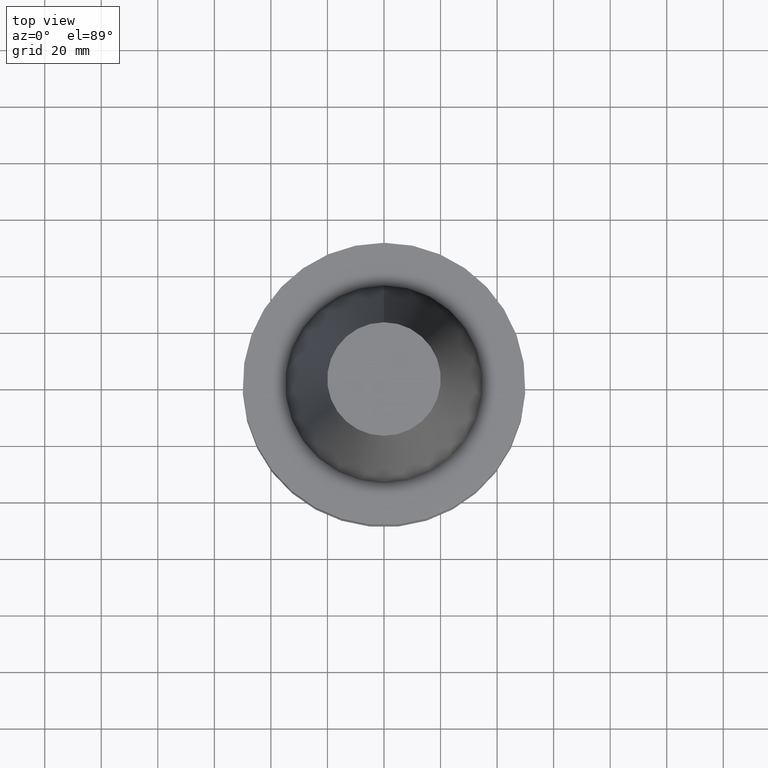
[diagram: clean part render]
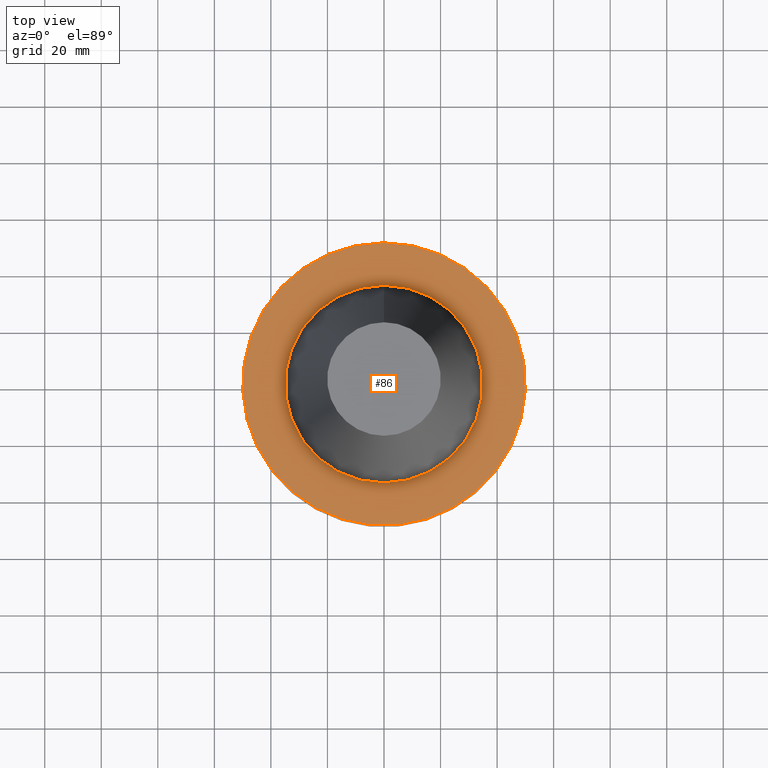
[diagram: same view with one face highlighted and labeled with its STEP entity id]
A machine part, top view. The second image highlights one B-rep face of the part: STEP entity #86.
In plain terms, the highlighted planar face has unit normal (-0, -0, 1).
Its self-contained STEP definition (entity closure, byte-faithful):
#86=ADVANCED_FACE('',(#123,#124),#125,.T.);
#123=FACE_BOUND('',#166,.T.);
#124=FACE_OUTER_BOUND('',#167,.T.);
#125=PLANE('',#168);
#166=EDGE_LOOP('',(#231));
#167=EDGE_LOOP('',(#232));
#168=AXIS2_PLACEMENT_3D('',#233,#234,#235);
#231=ORIENTED_EDGE('',*,*,#261,.F.);
#232=ORIENTED_EDGE('',*,*,#260,.T.);
#233=CARTESIAN_POINT('',(9.18485099360491E-017,42.4625,-1.49999999999996));
#234=DIRECTION('',(-6.12323399573677E-017,-4.26140557437139E-015,1.0));
#235=DIRECTION('',(-2.65762987556899E-031,1.0,4.26140557437139E-015));
#260=EDGE_CURVE('',#284,#284,#285,.T.);
#261=EDGE_CURVE('',#286,#286,#287,.T.);
#284=VERTEX_POINT('',#312);
#285=CIRCLE('',#313,50.0);
#286=VERTEX_POINT('',#314);
#287=CIRCLE('',#315,34.9250000000001);
#312=CARTESIAN_POINT('',(9.18485099360471E-017,50.0,-1.49999999999993));
#313=AXIS2_PLACEMENT_3D('',#350,#351,#352);
#314=CARTESIAN_POINT('',(9.18485099360511E-017,34.9250000000001,-1.5));
#315=AXIS2_PLACEMENT_3D('',#353,#354,#355);
#350=CARTESIAN_POINT('',(9.18485099360489E-017,-3.70235698905483E-014,-1.49999999999996));
#351=DIRECTION('',(-6.12323399573677E-017,-4.47418976075613E-016,1.0));
#352=DIRECTION('',(-3.22236635772083E-032,1.0,4.47418976075613E-016));
#353=CARTESIAN_POINT('',(9.18485099360524E-017,-3.70235698905483E-014,-1.50000000000001));
#354=DIRECTION('',(-6.12323399573677E-017,-4.47418976075613E-016,1.0));
#355=DIRECTION('',(-3.22236635772083E-032,1.0,4.47418976075613E-016));